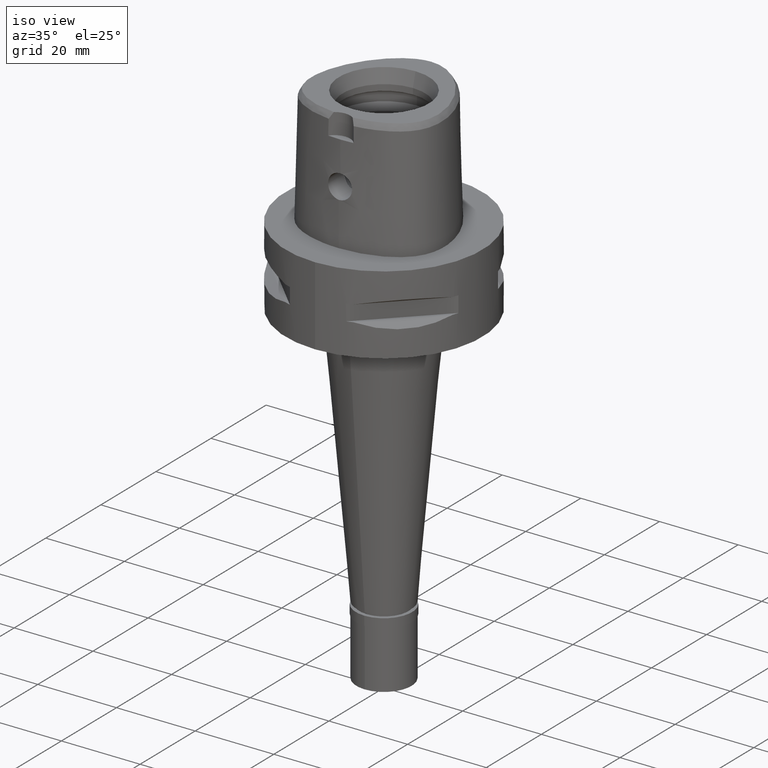
[diagram: clean part render]
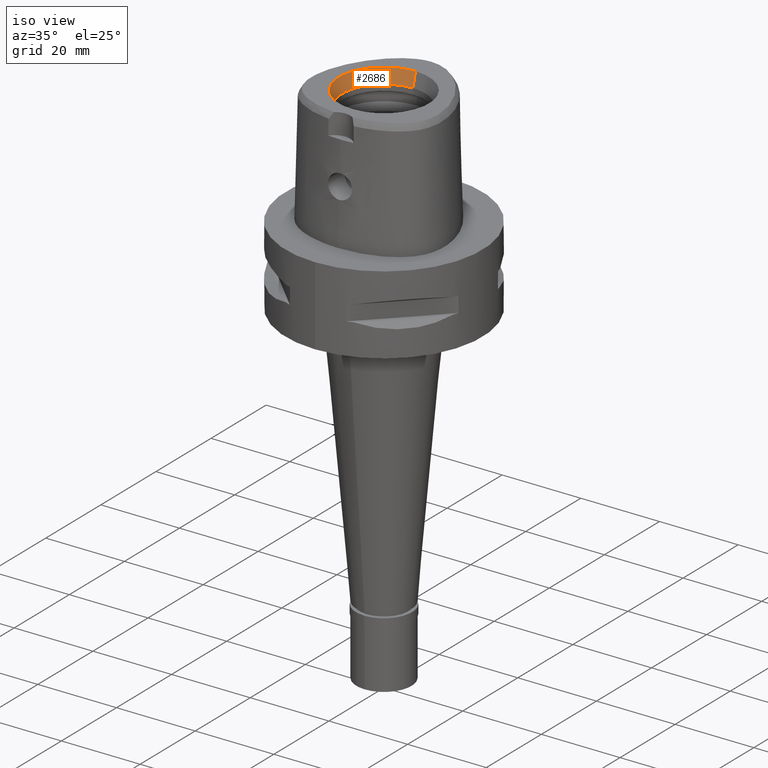
[diagram: same view with one face highlighted and labeled with its STEP entity id]
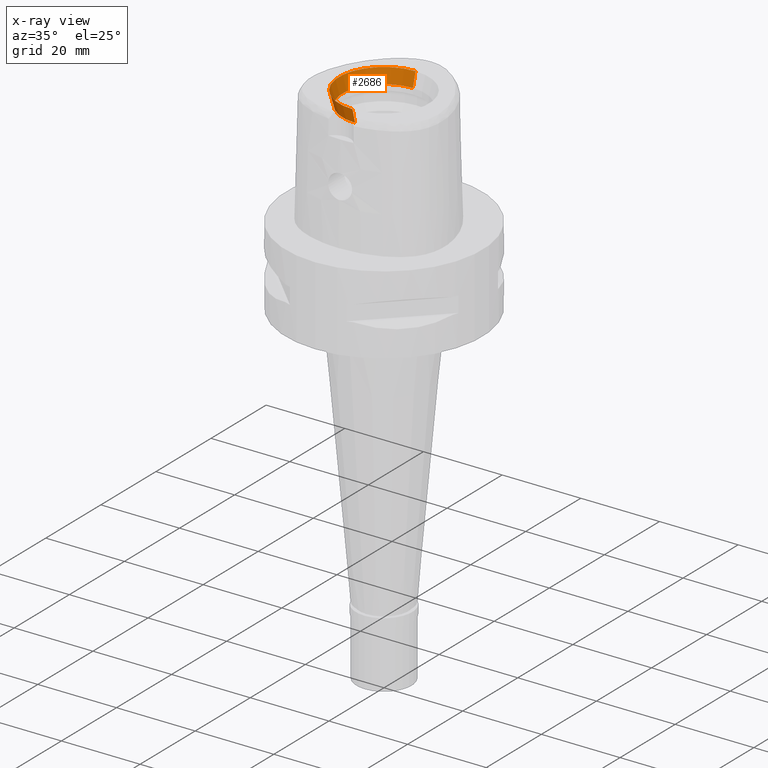
[diagram: x-ray of the same camera — body ghosted, the highlighted face saturated]
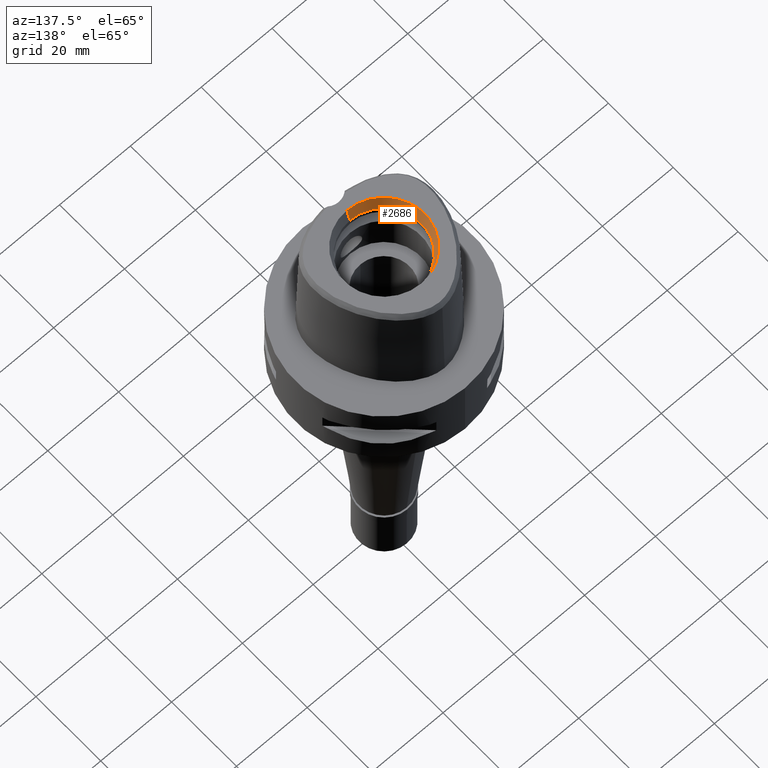
[diagram: same view with one face highlighted and labeled with its STEP entity id]
A machine part, iso view. The second image highlights one B-rep face of the part: STEP entity #2686.
The next image is the same camera in x-ray: the body ghosted, the highlighted face saturated — about 0% of this face is hidden behind the body in this view.
A second angle (auxiliary view) of the same face is appended — the face is thin or edge-on in the first view.
In plain terms, the highlighted conical surface has half-angle 15 deg.
Its self-contained STEP definition (entity closure, byte-faithful):
#288 = VECTOR ( 'NONE', #427, 999.9999999999998863 ) ;
#427 = DIRECTION ( 'NONE',  ( 0.0000000000000000000, -0.2588190451022134297, 0.9659258262891506908 ) ) ;
#635 = CARTESIAN_POINT ( 'NONE',  ( 0.0000000000000000000, 1.570614979474999723E-14, 30.00000000000000000 ) ) ;
#675 = DIRECTION ( 'NONE',  ( 0.0000000000000000000, 0.0000000000000000000, 1.000000000000000000 ) ) ;
#753 = ORIENTED_EDGE ( 'NONE', *, *, #2195, .F. ) ;
#829 = CARTESIAN_POINT ( 'NONE',  ( 0.0000000000000000000, 10.50000000000000000, 26.50089161528000048 ) ) ;
#1263 = LINE ( 'NONE', #1631, #4705 ) ;
#1363 = FACE_OUTER_BOUND ( 'NONE', #2975, .T. ) ;
#1438 = VERTEX_POINT ( 'NONE', #829 ) ;
#1528 = CIRCLE ( 'NONE', #3212, 10.50000000000000000 ) ;
#1585 = ORIENTED_EDGE ( 'NONE', *, *, #3216, .T. ) ;
#1631 = CARTESIAN_POINT ( 'NONE',  ( 0.0000000000000000000, 10.50000000000000000, 26.50089161528000048 ) ) ;
#1648 = DIRECTION ( 'NONE',  ( 0.0000000000000000000, 0.0000000000000000000, 1.000000000000000000 ) ) ;
#1758 = CIRCLE ( 'NONE', #4468, 11.43758326592000074 ) ;
#1765 = DIRECTION ( 'NONE',  ( 0.0000000000000000000, 0.0000000000000000000, 1.000000000000000000 ) ) ;
#1873 = CARTESIAN_POINT ( 'NONE',  ( 0.0000000000000000000, -10.50000000000000000, 26.50089161528000048 ) ) ;
#2010 = CARTESIAN_POINT ( 'NONE',  ( 0.0000000000000000000, 1.570614979474999723E-14, 28.25044580763999846 ) ) ;
#2155 = VERTEX_POINT ( 'NONE', #3917 ) ;
#2195 = EDGE_CURVE ( 'NONE', #1438, #4441, #1528, .T. ) ;
#2213 = AXIS2_PLACEMENT_3D ( 'NONE', #2010, #1648, #4293 ) ;
#2433 = CONICAL_SURFACE ( 'NONE', #2213, 10.96879163296000037, 0.2617993877991000029 ) ;
#2443 = CARTESIAN_POINT ( 'NONE',  ( 0.0000000000000000000, -10.50000000000000000, 26.50089161528000048 ) ) ;
#2487 = VERTEX_POINT ( 'NONE', #4148 ) ;
#2506 = EDGE_CURVE ( 'NONE', #4441, #2155, #3050, .T. ) ;
#2591 = DIRECTION ( 'NONE',  ( 0.0000000000000000000, 1.000000000000000000, 0.0000000000000000000 ) ) ;
#2686 = ADVANCED_FACE ( 'NONE', ( #1363 ), #2433, .F. ) ;
#2862 = ORIENTED_EDGE ( 'NONE', *, *, #2506, .F. ) ;
#2975 = EDGE_LOOP ( 'NONE', ( #2862, #753, #3315, #1585 ) ) ;
#3050 = LINE ( 'NONE', #1873, #288 ) ;
#3212 = AXIS2_PLACEMENT_3D ( 'NONE', #3725, #675, #2591 ) ;
#3216 = EDGE_CURVE ( 'NONE', #2487, #2155, #1758, .T. ) ;
#3243 = DIRECTION ( 'NONE',  ( 0.0000000000000000000, 1.000000000000000000, 0.0000000000000000000 ) ) ;
#3315 = ORIENTED_EDGE ( 'NONE', *, *, #4021, .T. ) ;
#3725 = CARTESIAN_POINT ( 'NONE',  ( 0.0000000000000000000, 1.570614979474999723E-14, 26.50089161528000048 ) ) ;
#3917 = CARTESIAN_POINT ( 'NONE',  ( 0.0000000000000000000, -11.43758326592000074, 30.00000000000000000 ) ) ;
#4021 = EDGE_CURVE ( 'NONE', #1438, #2487, #1263, .T. ) ;
#4148 = CARTESIAN_POINT ( 'NONE',  ( 0.0000000000000000000, 11.43758326592000074, 30.00000000000000000 ) ) ;
#4293 = DIRECTION ( 'NONE',  ( 0.0000000000000000000, 1.000000000000000000, 0.0000000000000000000 ) ) ;
#4441 = VERTEX_POINT ( 'NONE', #2443 ) ;
#4468 = AXIS2_PLACEMENT_3D ( 'NONE', #635, #1765, #3243 ) ;
#4588 = DIRECTION ( 'NONE',  ( 0.0000000000000000000, 0.2588190451022134297, 0.9659258262891506908 ) ) ;
#4705 = VECTOR ( 'NONE', #4588, 999.9999999999998863 ) ;